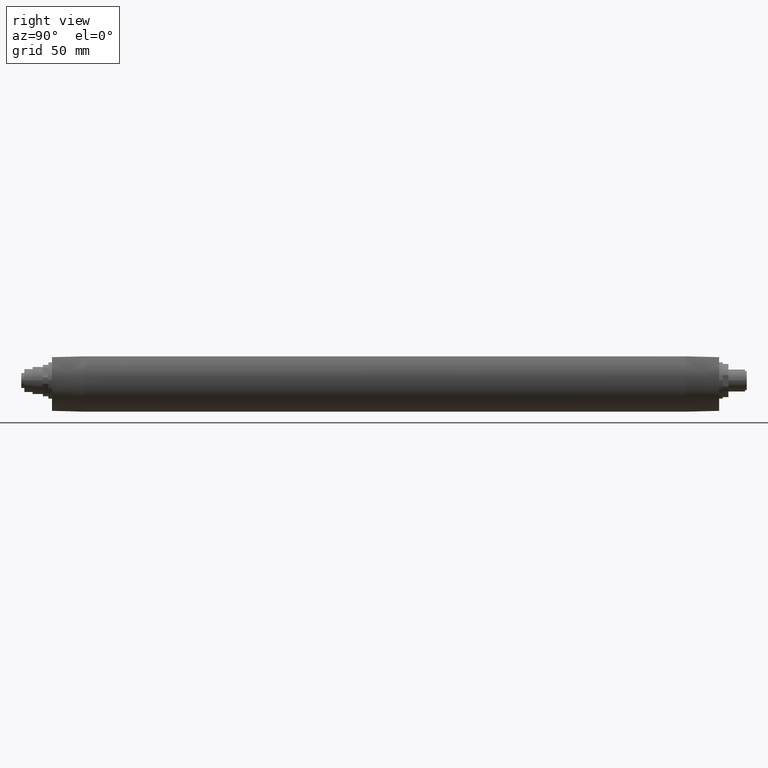
[diagram: clean part render]
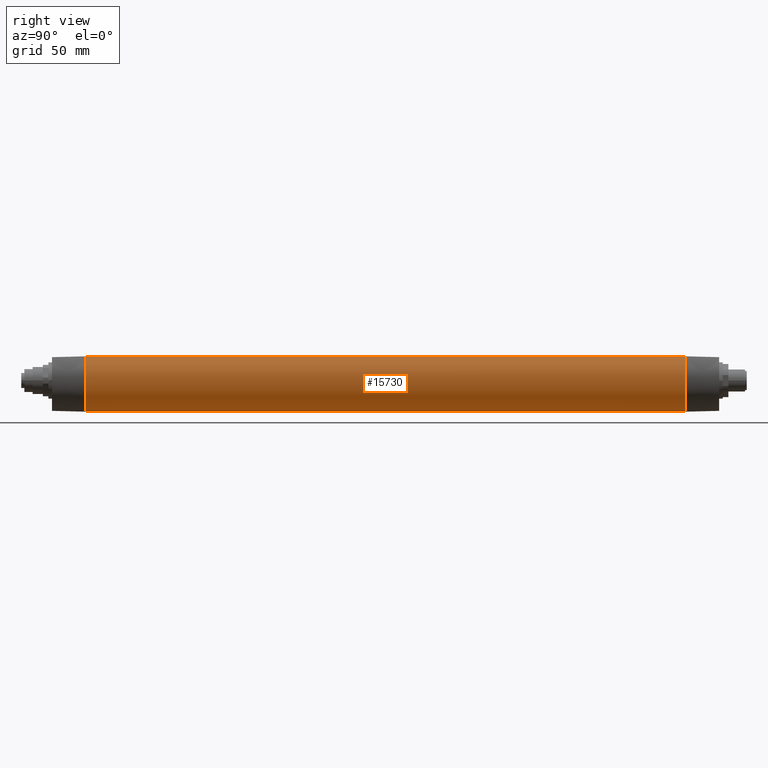
[diagram: same view with one face highlighted and labeled with its STEP entity id]
A machine part, right view. The second image highlights one B-rep face of the part: STEP entity #15730.
In plain terms, the highlighted cylindrical surface (partial cylindrical patch) has radius 20 mm, axis along (0, -1, 0).
Its self-contained STEP definition (entity closure, byte-faithful):
#14730=CARTESIAN_POINT('',(6.95970545353766,-18.7500000000003,
-74.9999999999736));
#14740=VERTEX_POINT('',#14730);
#15210=CARTESIAN_POINT('',(6.95970545353756,-18.75,250.));
#15220=VERTEX_POINT('',#15210);
#15250=CARTESIAN_POINT('',(6.95970545353759,-18.75,-75.4999999999999));
#15260=DIRECTION('',(0.,0.,-1.));
#15270=VECTOR('',#15260,1.);
#15280=LINE('',#15250,#15270);
#15290=EDGE_CURVE('',#15220,#14740,#15280,.T.);
#15410=CARTESIAN_POINT('',(-4.44089209850063E-14,-3.5527136788005E-15,
-75.4999999999999));
#15420=DIRECTION('',(0.,0.,1.));
#15430=DIRECTION('',(1.,0.,0.));
#15440=AXIS2_PLACEMENT_3D('',#15410,#15420,#15430);
#15450=CYLINDRICAL_SURFACE('',#15440,20.);
#15460=CARTESIAN_POINT('',(-5.69743333006917E-15,1.75599164270057E-15,
-74.9999999999736));
#15470=DIRECTION('',(2.67861795197786E-16,-3.53406135405247E-16,-1.));
#15480=DIRECTION('',(1.,9.46640018635614E-32,2.67861795197786E-16));
#15490=AXIS2_PLACEMENT_3D('',#15460,#15470,#15480);
#15500=CIRCLE('',#15490,20.0000000000003);
#15510=CARTESIAN_POINT('',(16.5698521417666,11.2000000000002,
-74.9999999999736));
#15520=VERTEX_POINT('',#15510);
#15530=EDGE_CURVE('',#15520,#14740,#15500,.T.);
#15540=ORIENTED_EDGE('',*,*,#15530,.F.);
#15550=ORIENTED_EDGE('',*,*,#15290,.T.);
#15560=CARTESIAN_POINT('',(-3.62339867859144E-14,-1.12440856692483E-13,
250.000000000027));
#15570=DIRECTION('',(1.23496678478392E-15,3.81502863814771E-15,1.));
#15580=DIRECTION('',(1.,-4.71143365111188E-30,-1.23496678478392E-15));
#15590=AXIS2_PLACEMENT_3D('',#15560,#15570,#15580);
#15600=CIRCLE('',#15590,19.9999999999997);
#15610=CARTESIAN_POINT('',(16.5698521417664,11.2,250.));
#15620=VERTEX_POINT('',#15610);
#15630=EDGE_CURVE('',#15220,#15620,#15600,.T.);
#15640=ORIENTED_EDGE('',*,*,#15630,.F.);
#15650=CARTESIAN_POINT('',(16.5698521417664,11.2,-75.4999999999999));
#15660=DIRECTION('',(0.,0.,1.));
#15670=VECTOR('',#15660,1.);
#15680=LINE('',#15650,#15670);
#15690=EDGE_CURVE('',#15520,#15620,#15680,.T.);
#15700=ORIENTED_EDGE('',*,*,#15690,.T.);
#15710=EDGE_LOOP('',(#15700,#15640,#15550,#15540));
#15720=FACE_OUTER_BOUND('',#15710,.T.);
#15730=ADVANCED_FACE('',(#15720),#15450,.T.);